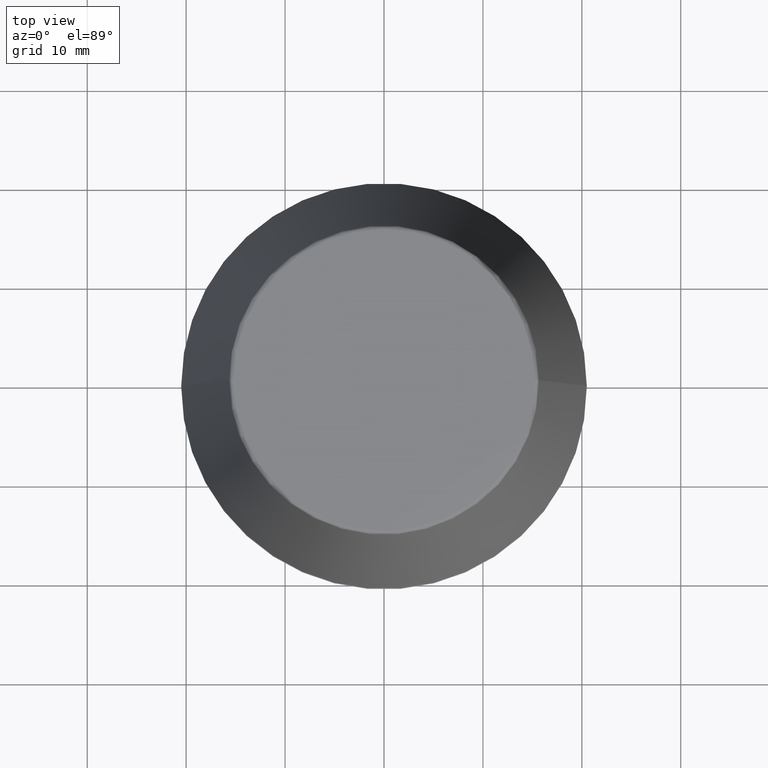
[diagram: clean part render]
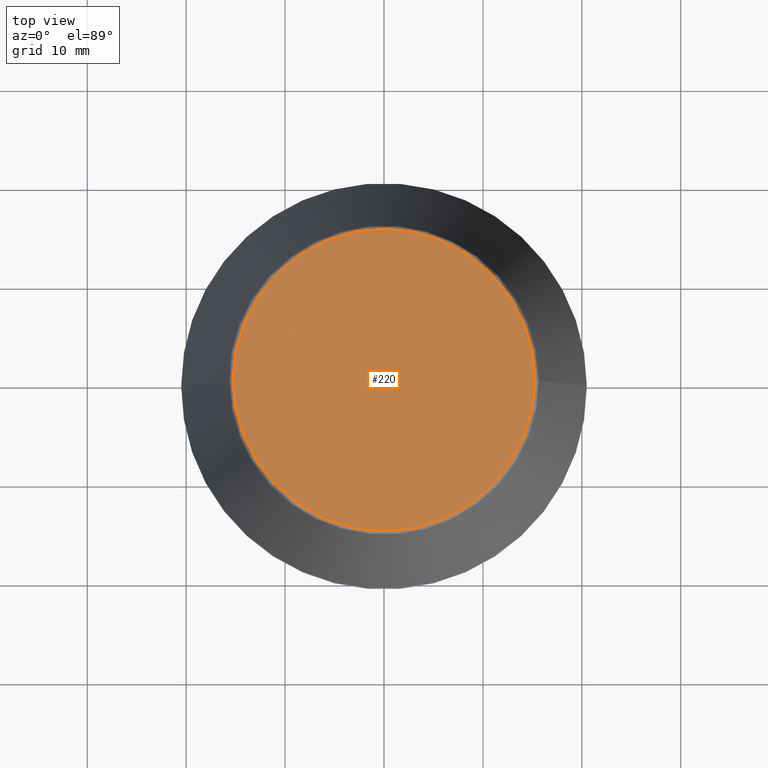
[diagram: same view with one face highlighted and labeled with its STEP entity id]
A machine part, top view. The second image highlights one B-rep face of the part: STEP entity #220.
In plain terms, the highlighted planar face has unit normal (0, 0, -1).
Its self-contained STEP definition (entity closure, byte-faithful):
#46 = DIRECTION ( 'NONE',  ( 0.0000000000000000000, 0.0000000000000000000, -1.000000000000000000 ) ) ;
#69 = EDGE_CURVE ( 'NONE', #184, #131, #215, .T. ) ;
#83 = EDGE_LOOP ( 'NONE', ( #267, #289 ) ) ;
#96 = CIRCLE ( 'NONE', #313, 15.24773554530077600 ) ;
#104 = CARTESIAN_POINT ( 'NONE',  ( 0.0000000000000000000, 0.0000000000000000000, 46.00000000000000000 ) ) ;
#121 = AXIS2_PLACEMENT_3D ( 'NONE', #154, #292, #162 ) ;
#131 = VERTEX_POINT ( 'NONE', #198 ) ;
#133 = DIRECTION ( 'NONE',  ( 1.000000000000000000, 0.0000000000000000000, 0.0000000000000000000 ) ) ;
#141 = CARTESIAN_POINT ( 'NONE',  ( 0.0000000000000000000, 15.24773554530077600, 46.00000000000000000 ) ) ;
#154 = CARTESIAN_POINT ( 'NONE',  ( 0.0000000000000000000, 0.0000000000000000000, 46.00000000000000000 ) ) ;
#162 = DIRECTION ( 'NONE',  ( 1.000000000000000000, 0.0000000000000000000, 0.0000000000000000000 ) ) ;
#184 = VERTEX_POINT ( 'NONE', #225 ) ;
#198 = CARTESIAN_POINT ( 'NONE',  ( 15.24773554530077600, 0.0000000000000000000, 46.00000000000000000 ) ) ;
#215 = CIRCLE ( 'NONE', #121, 15.24773554530077600 ) ;
#220 = ADVANCED_FACE ( 'NONE', ( #274 ), #264, .F. ) ;
#225 = CARTESIAN_POINT ( 'NONE',  ( -15.24773554530077600, 1.891563625393435400E-015, 46.00000000000000000 ) ) ;
#256 = DIRECTION ( 'NONE',  ( -1.000000000000000000, 0.0000000000000000000, -0.0000000000000000000 ) ) ;
#264 = PLANE ( 'NONE',  #278 ) ;
#267 = ORIENTED_EDGE ( 'NONE', *, *, #302, .T. ) ;
#274 = FACE_OUTER_BOUND ( 'NONE', #83, .T. ) ;
#278 = AXIS2_PLACEMENT_3D ( 'NONE', #141, #46, #256 ) ;
#289 = ORIENTED_EDGE ( 'NONE', *, *, #69, .T. ) ;
#292 = DIRECTION ( 'NONE',  ( -0.0000000000000000000, -0.0000000000000000000, 1.000000000000000000 ) ) ;
#302 = EDGE_CURVE ( 'NONE', #131, #184, #96, .T. ) ;
#313 = AXIS2_PLACEMENT_3D ( 'NONE', #104, #326, #133 ) ;
#326 = DIRECTION ( 'NONE',  ( -0.0000000000000000000, -0.0000000000000000000, 1.000000000000000000 ) ) ;